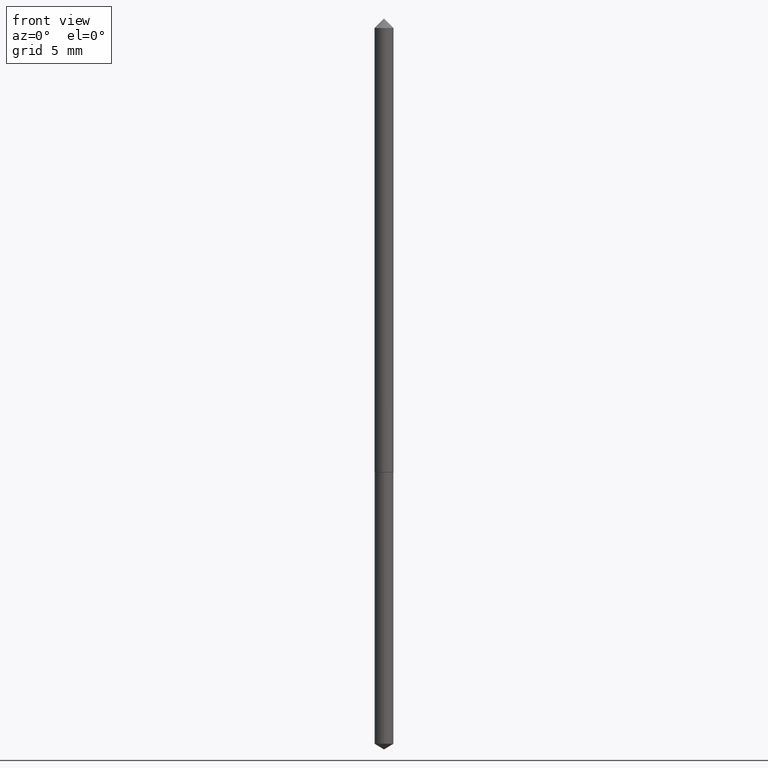
[diagram: clean part render]
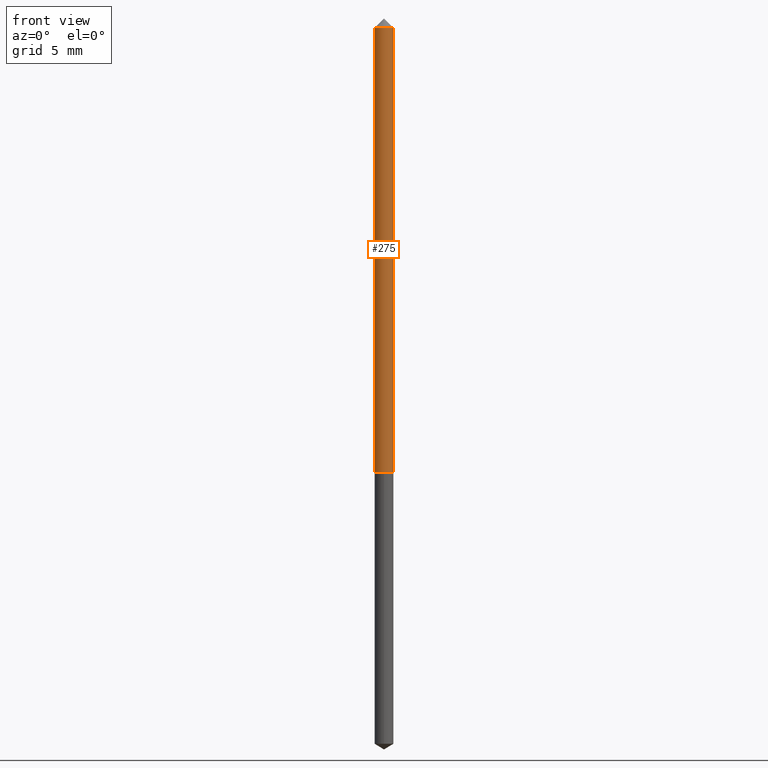
[diagram: same view with one face highlighted and labeled with its STEP entity id]
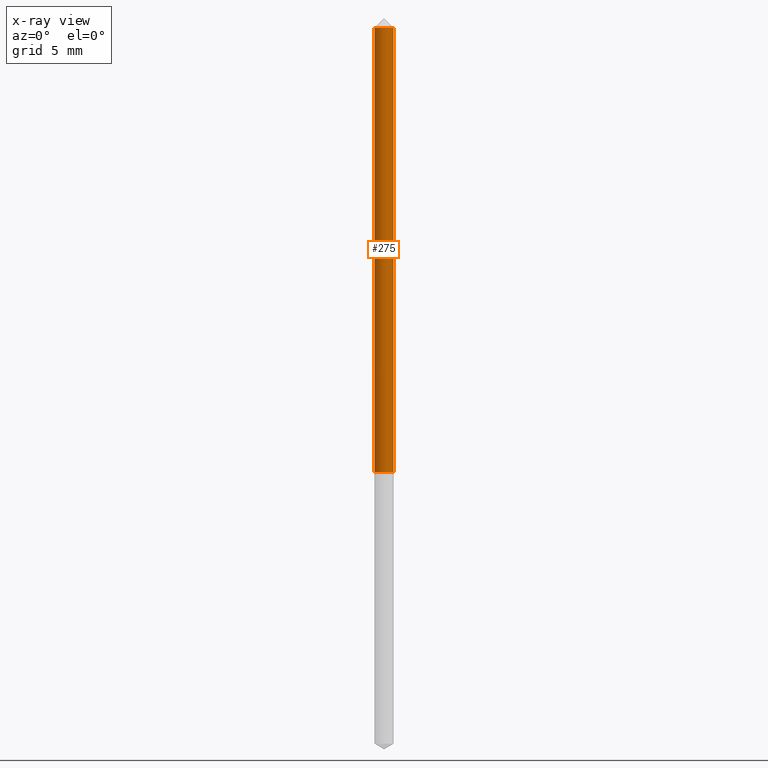
[diagram: x-ray of the same camera — body ghosted, the highlighted face saturated]
A machine part, front view. The second image highlights one B-rep face of the part: STEP entity #275.
The next image is the same camera in x-ray: the body ghosted, the highlighted face saturated — about 0% of this face is hidden behind the body in this view.
In plain terms, the highlighted cylindrical surface (edge-blend (fillet) strip) has radius 0.4064 mm, axis along (-0, 0, 1).
Its self-contained STEP definition (entity closure, byte-faithful):
#26 = CARTESIAN_POINT ( 'NONE',  ( 0.01600000000000009401, -2.840320069148899113E-15, -0.7814999999999999725 ) ) ;
#40 = VERTEX_POINT ( 'NONE', #26 ) ;
#44 = DIRECTION ( 'NONE',  ( 1.000000000000000000, -6.982962677686267499E-15, 4.876176775795936353E-29 ) ) ;
#48 = DIRECTION ( 'NONE',  ( -2.445468806185136597E-29, 3.491481338843145583E-15, 1.000000000000000000 ) ) ;
#68 = VERTEX_POINT ( 'NONE', #280 ) ;
#96 = DIRECTION ( 'NONE',  ( -2.445468806185136597E-29, 3.491481338843145583E-15, 1.000000000000000000 ) ) ;
#109 = VECTOR ( 'NONE', #180, 39.37007874015748143 ) ;
#116 = DIRECTION ( 'NONE',  ( -2.445468806185136877E-29, 3.491481338843145188E-15, 1.000000000000000000 ) ) ;
#125 = CARTESIAN_POINT ( 'NONE',  ( 7.642090019328601786E-31, -1.091087918388490144E-16, -0.03125000000000020123 ) ) ;
#126 = CIRCLE ( 'NONE', #316, 0.01600000000000000380 ) ;
#140 = EDGE_CURVE ( 'NONE', #40, #271, #330, .T. ) ;
#144 = EDGE_CURVE ( 'NONE', #335, #68, #254, .T. ) ;
#157 = CARTESIAN_POINT ( 'NONE',  ( 1.911133872033684367E-29, -2.728592666305918152E-15, -0.7814999999999999725 ) ) ;
#158 = EDGE_LOOP ( 'NONE', ( #227, #308, #297, #166 ) ) ;
#166 = ORIENTED_EDGE ( 'NONE', *, *, #203, .F. ) ;
#170 = CARTESIAN_POINT ( 'NONE',  ( 0.01600000000000004891, -1.117274028429806164E-16, 7.801882841273521721E-31 ) ) ;
#176 = DIRECTION ( 'NONE',  ( -2.445468806185136597E-29, 3.491481338843145583E-15, 1.000000000000000000 ) ) ;
#180 = DIRECTION ( 'NONE',  ( -2.445468806185136877E-29, 3.491481338843145188E-15, 1.000000000000000000 ) ) ;
#185 = CARTESIAN_POINT ( 'NONE',  ( 0.01600000000000000380, -2.208361946818292980E-16, -0.03125000000000020123 ) ) ;
#203 = EDGE_CURVE ( 'NONE', #68, #271, #126, .T. ) ;
#209 = VECTOR ( 'NONE', #116, 39.37007874015748143 ) ;
#211 = CYLINDRICAL_SURFACE ( 'NONE', #231, 0.01600000000000004891 ) ;
#216 = CARTESIAN_POINT ( 'NONE',  ( 0.000000000000000000, 0.000000000000000000, 0.000000000000000000 ) ) ;
#227 = ORIENTED_EDGE ( 'NONE', *, *, #144, .F. ) ;
#231 = AXIS2_PLACEMENT_3D ( 'NONE', #216, #48, #44 ) ;
#232 = DIRECTION ( 'NONE',  ( 1.000000000000000000, -6.982962677686266711E-15, 0.000000000000000000 ) ) ;
#244 = EDGE_CURVE ( 'NONE', #335, #40, #353, .T. ) ;
#254 = LINE ( 'NONE', #293, #109 ) ;
#270 = FACE_OUTER_BOUND ( 'NONE', #158, .T. ) ;
#271 = VERTEX_POINT ( 'NONE', #185 ) ;
#273 = CARTESIAN_POINT ( 'NONE',  ( -0.01600000000000009401, -2.614905828584301627E-15, -0.7814999999999999725 ) ) ;
#275 = ADVANCED_FACE ( 'NONE', ( #270 ), #211, .T. ) ;
#280 = CARTESIAN_POINT ( 'NONE',  ( -0.01600000000000000380, -1.305163891350765523E-15, -0.03125000000000020123 ) ) ;
#293 = CARTESIAN_POINT ( 'NONE',  ( -0.01600000000000004891, 1.136868377216163772E-16, -7.870296144407873858E-31 ) ) ;
#297 = ORIENTED_EDGE ( 'NONE', *, *, #140, .T. ) ;
#308 = ORIENTED_EDGE ( 'NONE', *, *, #244, .T. ) ;
#316 = AXIS2_PLACEMENT_3D ( 'NONE', #125, #176, #232 ) ;
#320 = DIRECTION ( 'NONE',  ( 1.000000000000000000, -6.982962677686261189E-15, 0.000000000000000000 ) ) ;
#325 = AXIS2_PLACEMENT_3D ( 'NONE', #157, #96, #320 ) ;
#330 = LINE ( 'NONE', #170, #209 ) ;
#335 = VERTEX_POINT ( 'NONE', #273 ) ;
#353 = CIRCLE ( 'NONE', #325, 0.01600000000000009401 ) ;